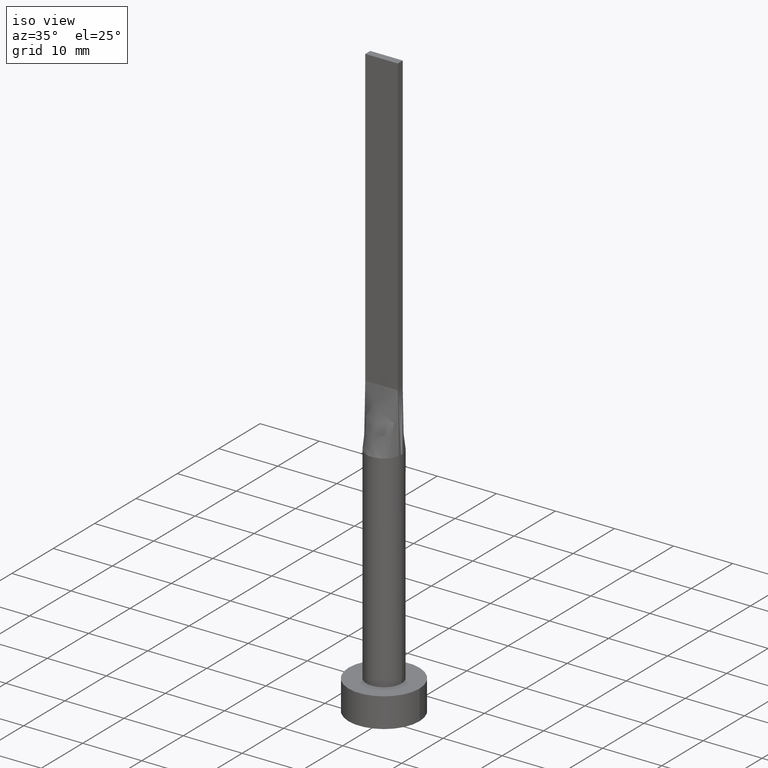
[diagram: clean part render]
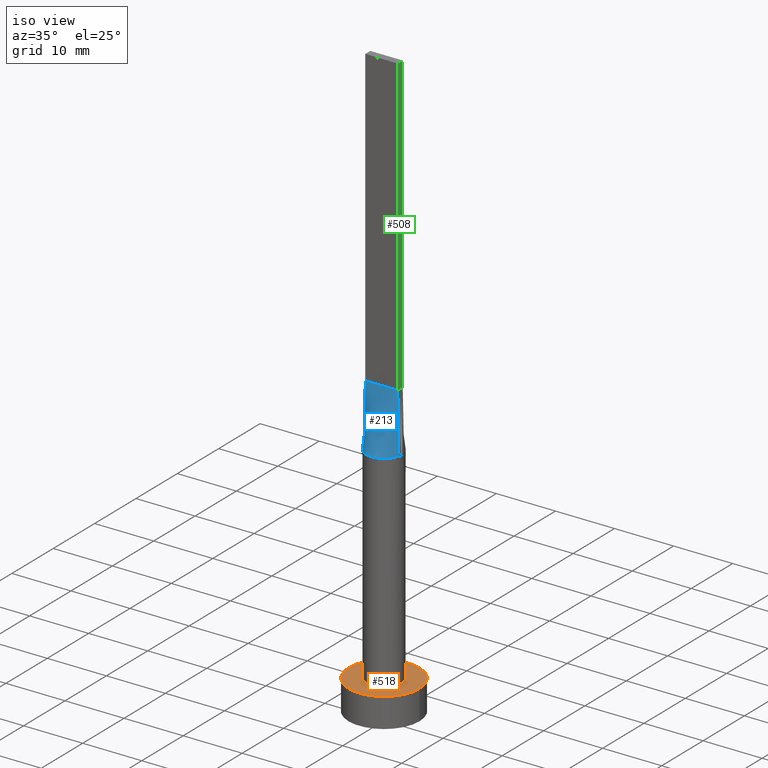
[diagram: same view with three faces highlighted in distinct colors, each labeled with its STEP entity id]
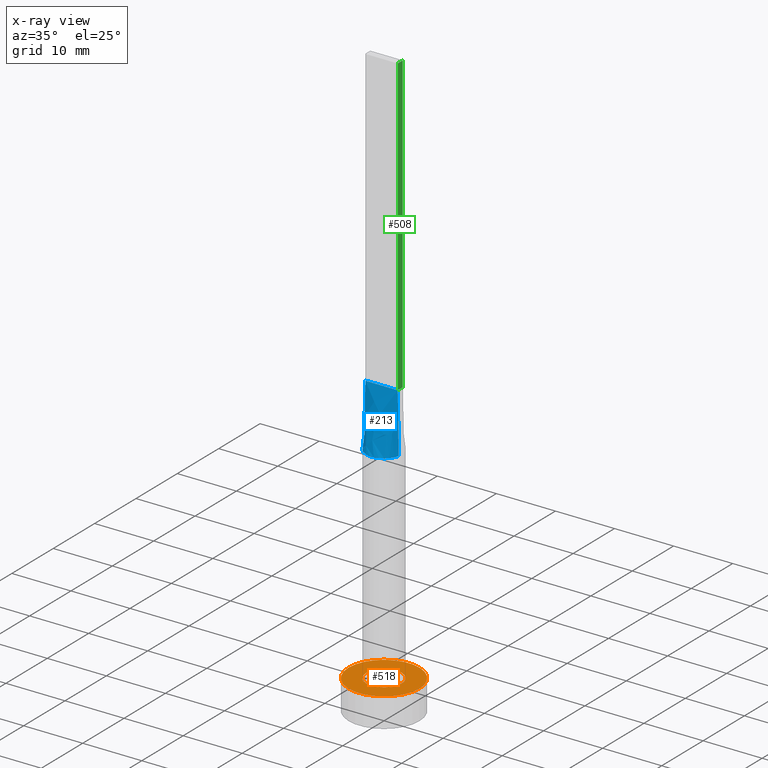
[diagram: x-ray of the same camera — body ghosted, the three highlighted faces saturated]
A machine part, iso view with three faces highlighted in distinct colors.
The next image is the same camera in x-ray (body ghosted, the three faces saturated) — at least one of them is partly hidden behind the body in this view.
Their STEP definitions:

[orange] entity #518 — the highlighted planar face has unit normal (0, 0, 1).
#17 = CARTESIAN_POINT ( 'NONE',  ( 0.000000000000000000, 0.000000000000000000, 5.000000000000000000 ) ) ;
#27 = CARTESIAN_POINT ( 'NONE',  ( 6.000000000000000888, 7.347880794884120722E-16, 5.000000000000000000 ) ) ;
#30 = DIRECTION ( 'NONE',  ( 1.000000000000000000, 0.000000000000000000, -0.000000000000000000 ) ) ;
#31 = CIRCLE ( 'NONE', #392, 6.000000000000000888 ) ;
#51 = ORIENTED_EDGE ( 'NONE', *, *, #326, .F. ) ;
#54 = DIRECTION ( 'NONE',  ( 1.000000000000000000, 0.000000000000000000, 0.000000000000000000 ) ) ;
#95 = DIRECTION ( 'NONE',  ( 0.000000000000000000, 0.000000000000000000, 1.000000000000000000 ) ) ;
#106 = CIRCLE ( 'NONE', #170, 3.000000000000000444 ) ;
#111 = CARTESIAN_POINT ( 'NONE',  ( 0.000000000000000000, 0.000000000000000000, 5.000000000000000000 ) ) ;
#124 = AXIS2_PLACEMENT_3D ( 'NONE', #111, #297, #30 ) ;
#149 = CARTESIAN_POINT ( 'NONE',  ( 0.000000000000000000, 0.000000000000000000, 5.000000000000000000 ) ) ;
#162 = PLANE ( 'NONE',  #124 ) ;
#166 = CARTESIAN_POINT ( 'NONE',  ( 0.000000000000000000, 0.000000000000000000, 5.000000000000000000 ) ) ;
#168 = VERTEX_POINT ( 'NONE', #27 ) ;
#170 = AXIS2_PLACEMENT_3D ( 'NONE', #149, #408, #542 ) ;
#192 = AXIS2_PLACEMENT_3D ( 'NONE', #166, #425, #201 ) ;
#201 = DIRECTION ( 'NONE',  ( 1.000000000000000000, 0.000000000000000000, 0.000000000000000000 ) ) ;
#223 = ORIENTED_EDGE ( 'NONE', *, *, #428, .F. ) ;
#244 = CARTESIAN_POINT ( 'NONE',  ( 0.000000000000000000, 0.000000000000000000, 5.000000000000000000 ) ) ;
#293 = FACE_BOUND ( 'NONE', #348, .T. ) ;
#297 = DIRECTION ( 'NONE',  ( 0.000000000000000000, 0.000000000000000000, 1.000000000000000000 ) ) ;
#300 = CARTESIAN_POINT ( 'NONE',  ( 3.000000000000000444, 3.673940397442060361E-16, 5.000000000000000000 ) ) ;
#324 = AXIS2_PLACEMENT_3D ( 'NONE', #244, #548, #454 ) ;
#326 = EDGE_CURVE ( 'NONE', #400, #578, #531, .T. ) ;
#332 = CARTESIAN_POINT ( 'NONE',  ( -6.000000000000000888, 0.000000000000000000, 5.000000000000000000 ) ) ;
#334 = VERTEX_POINT ( 'NONE', #332 ) ;
#348 = EDGE_LOOP ( 'NONE', ( #51, #223 ) ) ;
#355 = EDGE_CURVE ( 'NONE', #334, #168, #31, .T. ) ;
#392 = AXIS2_PLACEMENT_3D ( 'NONE', #17, #95, #54 ) ;
#400 = VERTEX_POINT ( 'NONE', #452 ) ;
#405 = EDGE_LOOP ( 'NONE', ( #570, #447 ) ) ;
#408 = DIRECTION ( 'NONE',  ( 0.000000000000000000, 0.000000000000000000, 1.000000000000000000 ) ) ;
#425 = DIRECTION ( 'NONE',  ( 0.000000000000000000, 0.000000000000000000, 1.000000000000000000 ) ) ;
#428 = EDGE_CURVE ( 'NONE', #578, #400, #106, .T. ) ;
#447 = ORIENTED_EDGE ( 'NONE', *, *, #502, .T. ) ;
#452 = CARTESIAN_POINT ( 'NONE',  ( -3.000000000000000444, 0.000000000000000000, 5.000000000000000000 ) ) ;
#454 = DIRECTION ( 'NONE',  ( 1.000000000000000000, 0.000000000000000000, 0.000000000000000000 ) ) ;
#469 = FACE_OUTER_BOUND ( 'NONE', #405, .T. ) ;
#477 = CIRCLE ( 'NONE', #192, 6.000000000000000888 ) ;
#502 = EDGE_CURVE ( 'NONE', #168, #334, #477, .T. ) ;
#518 = ADVANCED_FACE ( 'NONE', ( #293, #469 ), #162, .T. ) ;
#531 = CIRCLE ( 'NONE', #324, 3.000000000000000444 ) ;
#542 = DIRECTION ( 'NONE',  ( 1.000000000000000000, 0.000000000000000000, 0.000000000000000000 ) ) ;
#548 = DIRECTION ( 'NONE',  ( 0.000000000000000000, 0.000000000000000000, 1.000000000000000000 ) ) ;
#570 = ORIENTED_EDGE ( 'NONE', *, *, #355, .T. ) ;
#578 = VERTEX_POINT ( 'NONE', #300 ) ;

[blue] entity #213 — the highlighted face is a freeform B-spline surface patch.
#2 = LINE ( 'NONE', #391, #503 ) ;
#9 = CARTESIAN_POINT ( 'NONE',  ( -2.931315536094174057, -0.6395601373676296220, 40.00000000000000000 ) ) ;
#12 = CARTESIAN_POINT ( 'NONE',  ( 2.840523642114988867, -0.6197506128250874768, 45.00000000000000000 ) ) ;
#15 = LINE ( 'NONE', #12, #67 ) ;
#41 = VERTEX_POINT ( 'NONE', #9 ) ;
#45 = VERTEX_POINT ( 'NONE', #539 ) ;
#47 = CARTESIAN_POINT ( 'NONE',  ( -2.520833333333333037, -0.5999999999999994227, 50.00000000000000000 ) ) ;
#50 = CARTESIAN_POINT ( 'NONE',  ( -0.4583333333333328152, -0.5999999999999994227, 50.00000000000000000 ) ) ;
#59 = EDGE_CURVE ( 'NONE', #71, #181, #15, .T. ) ;
#67 = VECTOR ( 'NONE', #541, 1000.000000000000000 ) ;
#71 = VERTEX_POINT ( 'NONE', #347 ) ;
#81 = CARTESIAN_POINT ( 'NONE',  ( 2.291666666666666519, -0.5999999999999996447, 50.00000000000000000 ) ) ;
#86 = CARTESIAN_POINT ( 'NONE',  ( 2.792624347712116872, -1.135030881087315757, 40.00000000000001421 ) ) ;
#90 = CARTESIAN_POINT ( 'NONE',  ( 2.750000000000000000, -0.5999999999999997558, 50.00000000000000000 ) ) ;
#117 = DIRECTION ( 'NONE',  ( -0.01810162078030962129, -0.003949444533885649103, -0.9998283518749604415 ) ) ;
#127 = CARTESIAN_POINT ( 'NONE',  ( 0.4583333333333337034, -0.5999999999999995337, 50.00000000000000000 ) ) ;
#133 = CARTESIAN_POINT ( 'NONE',  ( 1.517787371616671876, -2.616501225271829156, 40.00000000000000711 ) ) ;
#136 = CARTESIAN_POINT ( 'NONE',  ( -2.931047284229977734, -0.6395012256501755310, 40.00000000000000000 ) ) ;
#151 = VECTOR ( 'NONE', #117, 1000.000000000000000 ) ;
#172 = CARTESIAN_POINT ( 'NONE',  ( -2.328745122427009928, -1.922758842442225058, 39.99999999999997868 ) ) ;
#173 = ORIENTED_EDGE ( 'NONE', *, *, #581, .T. ) ;
#181 = VERTEX_POINT ( 'NONE', #90 ) ;
#209 = CARTESIAN_POINT ( 'NONE',  ( 0.000000000000000000, 0.000000000000000000, 40.00000000000000000 ) ) ;
#213 = ADVANCED_FACE ( 'NONE', ( #318 ), #575, .T. ) ;
#215 = CARTESIAN_POINT ( 'NONE',  ( 2.518011668798964209, -1.657305971825550506, 40.00000000000001421 ) ) ;
#219 = DIRECTION ( 'NONE',  ( 1.000000000000000000, -5.913830031739115543E-17, 0.000000000000000000 ) ) ;
#226 = CARTESIAN_POINT ( 'NONE',  ( -1.145833333333332149, -0.5999999999999994227, 50.00000000000000000 ) ) ;
#229 = CARTESIAN_POINT ( 'NONE',  ( 2.931047284229977734, -0.6395012256501753090, 40.00000000000000000 ) ) ;
#230 = ORIENTED_EDGE ( 'NONE', *, *, #59, .T. ) ;
#236 = EDGE_CURVE ( 'NONE', #45, #181, #2, .T. ) ;
#261 = CARTESIAN_POINT ( 'NONE',  ( -1.517787371616672321, -2.616501225271827380, 39.99999999999998579 ) ) ;
#264 = CARTESIAN_POINT ( 'NONE',  ( 2.520833333333333037, -0.5999999999999996447, 50.00000000000000000 ) ) ;
#267 = CIRCLE ( 'NONE', #296, 3.000000000000000444 ) ;
#268 = CARTESIAN_POINT ( 'NONE',  ( 2.878980386154875060, -0.8781411751610634919, 40.00000000000000000 ) ) ;
#271 = CARTESIAN_POINT ( 'NONE',  ( -2.291666666666665630, -0.5999999999999994227, 50.00000000000000000 ) ) ;
#290 = LINE ( 'NONE', #431, #151 ) ;
#296 = AXIS2_PLACEMENT_3D ( 'NONE', #209, #510, #338 ) ;
#308 = CARTESIAN_POINT ( 'NONE',  ( 1.604166666666666741, -0.5999999999999996447, 50.00000000000000000 ) ) ;
#310 = CARTESIAN_POINT ( 'NONE',  ( -0.8041209001220698260, -2.916015559847872307, 40.00000000000000000 ) ) ;
#318 = FACE_OUTER_BOUND ( 'NONE', #444, .T. ) ;
#338 = DIRECTION ( 'NONE',  ( 1.000000000000000000, 0.000000000000000000, 0.000000000000000000 ) ) ;
#347 = CARTESIAN_POINT ( 'NONE',  ( 2.931332910560268790, -0.6395638358681950963, 40.00000000000000000 ) ) ;
#353 = CARTESIAN_POINT ( 'NONE',  ( 1.145833333333333481, -0.5999999999999996447, 50.00000000000000000 ) ) ;
#356 = CARTESIAN_POINT ( 'NONE',  ( -2.792624347712116428, -1.135030881087314647, 40.00000000000000711 ) ) ;
#359 = CARTESIAN_POINT ( 'NONE',  ( 0.4026715616377293805, -3.000000000000001332, 40.00000000000000000 ) ) ;
#365 = CARTESIAN_POINT ( 'NONE',  ( -2.518011668798964653, -1.657305971825550062, 40.00000000000001421 ) ) ;
#391 = CARTESIAN_POINT ( 'NONE',  ( -2.750000000000000000, -0.5999999999999994227, 50.00000000000000000 ) ) ;
#399 = CARTESIAN_POINT ( 'NONE',  ( -0.2291666666666664076, -0.5999999999999995337, 50.00000000000000000 ) ) ;
#404 = CARTESIAN_POINT ( 'NONE',  ( -0.4026715616377306572, -3.000000000000000000, 40.00000000000000000 ) ) ;
#406 = CARTESIAN_POINT ( 'NONE',  ( -2.878980386154874616, -0.8781411751610622707, 39.99999999999999289 ) ) ;
#431 = CARTESIAN_POINT ( 'NONE',  ( -2.840523642114988867, -0.6197506128250873658, 45.00000000000000000 ) ) ;
#437 = CARTESIAN_POINT ( 'NONE',  ( -2.750000000000000000, -0.5999999999999994227, 50.00000000000000000 ) ) ;
#439 = CARTESIAN_POINT ( 'NONE',  ( 2.750000000000000000, -0.5999999999999997558, 50.00000000000000000 ) ) ;
#444 = EDGE_LOOP ( 'NONE', ( #173, #230, #489, #561 ) ) ;
#446 = CARTESIAN_POINT ( 'NONE',  ( -1.604166666666665408, -0.5999999999999994227, 50.00000000000000000 ) ) ;
#449 = CARTESIAN_POINT ( 'NONE',  ( -1.833333333333332149, -0.5999999999999994227, 50.00000000000000000 ) ) ;
#476 = EDGE_CURVE ( 'NONE', #45, #41, #290, .T. ) ;
#481 = CARTESIAN_POINT ( 'NONE',  ( 0.2291666666666668517, -0.5999999999999995337, 50.00000000000000000 ) ) ;
#484 = CARTESIAN_POINT ( 'NONE',  ( 1.829136458871248205, -2.402980488111650992, 40.00000000000000711 ) ) ;
#489 = ORIENTED_EDGE ( 'NONE', *, *, #236, .F. ) ;
#503 = VECTOR ( 'NONE', #219, 1000.000000000000000 ) ;
#510 = DIRECTION ( 'NONE',  ( 0.000000000000000000, 0.000000000000000000, 1.000000000000000000 ) ) ;
#522 = CARTESIAN_POINT ( 'NONE',  ( 0.9166666666666669627, -0.5999999999999996447, 50.00000000000000000 ) ) ;
#526 = CARTESIAN_POINT ( 'NONE',  ( -0.9166666666666656305, -0.5999999999999994227, 50.00000000000000000 ) ) ;
#529 = CARTESIAN_POINT ( 'NONE',  ( 0.8041209001220684938, -2.916015559847872751, 40.00000000000000000 ) ) ;
#535 = CARTESIAN_POINT ( 'NONE',  ( 2.328745122427008152, -1.922758842442226390, 39.99999999999999289 ) ) ;
#539 = CARTESIAN_POINT ( 'NONE',  ( -2.750000000000000000, -0.5999999999999994227, 50.00000000000000000 ) ) ;
#541 = DIRECTION ( 'NONE',  ( -0.01810162078030962129, 0.003949444533885595326, 0.9998283518749604415 ) ) ;
#561 = ORIENTED_EDGE ( 'NONE', *, *, #476, .T. ) ;
#567 = CARTESIAN_POINT ( 'NONE',  ( -1.829136458871248427, -2.402980488111649660, 39.99999999999997158 ) ) ;
#572 = CARTESIAN_POINT ( 'NONE',  ( 1.833333333333333481, -0.5999999999999996447, 50.00000000000000000 ) ) ;
#575 = B_SPLINE_SURFACE_WITH_KNOTS ( 'NONE', 3, 1, ( 
 ( #136, #437 ),
 ( #406, #47 ),
 ( #356, #271 ),
 ( #365, #449 ),
 ( #172, #446 ),
 ( #567, #226 ),
 ( #261, #526 ),
 ( #310, #50 ),
 ( #404, #399 ),
 ( #359, #481 ),
 ( #529, #127 ),
 ( #133, #522 ),
 ( #484, #353 ),
 ( #535, #308 ),
 ( #215, #572 ),
 ( #86, #81 ),
 ( #268, #264 ),
 ( #229, #439 ) ),
 .UNSPECIFIED., .F., .F., .F.,
 ( 4, 2, 2, 2, 2, 2, 2, 2, 4 ),
 ( 2, 2 ),
 ( 0.000000000000000000, 0.1250000000000000833, 0.2500000000000001665, 0.3750000000000001110, 0.5000000000000001110, 0.6250000000000001110, 0.7500000000000000000, 0.8750000000000000000, 1.000000000000000000 ),
 ( 0.000000000000000000, 1.000000000000000000 ),
 .UNSPECIFIED. ) ;
#581 = EDGE_CURVE ( 'NONE', #41, #71, #267, .T. ) ;

[green] entity #508 — the highlighted planar face has unit normal (-1, 0, 0).
#8 = CARTESIAN_POINT ( 'NONE',  ( 2.750000000000000000, 0.6000000000000001998, 50.00000000000000000 ) ) ;
#26 = CARTESIAN_POINT ( 'NONE',  ( 2.750000000000000000, -0.5999999999999997558, 100.0000000000000000 ) ) ;
#33 = PLANE ( 'NONE',  #228 ) ;
#82 = EDGE_CURVE ( 'NONE', #181, #409, #516, .T. ) ;
#90 = CARTESIAN_POINT ( 'NONE',  ( 2.750000000000000000, -0.5999999999999997558, 50.00000000000000000 ) ) ;
#97 = ORIENTED_EDGE ( 'NONE', *, *, #143, .F. ) ;
#98 = CARTESIAN_POINT ( 'NONE',  ( 2.750000000000000000, 0.6000000000000001998, 100.0000000000000000 ) ) ;
#99 = ORIENTED_EDGE ( 'NONE', *, *, #161, .F. ) ;
#112 = DIRECTION ( 'NONE',  ( 0.000000000000000000, 1.000000000000000000, 0.000000000000000000 ) ) ;
#143 = EDGE_CURVE ( 'NONE', #530, #323, #520, .T. ) ;
#158 = VECTOR ( 'NONE', #112, 1000.000000000000000 ) ;
#161 = EDGE_CURVE ( 'NONE', #323, #409, #295, .T. ) ;
#181 = VERTEX_POINT ( 'NONE', #90 ) ;
#211 = DIRECTION ( 'NONE',  ( -1.000000000000000000, 0.000000000000000000, 0.000000000000000000 ) ) ;
#228 = AXIS2_PLACEMENT_3D ( 'NONE', #26, #211, #429 ) ;
#242 = DIRECTION ( 'NONE',  ( -0.000000000000000000, -0.000000000000000000, -1.000000000000000000 ) ) ;
#251 = DIRECTION ( 'NONE',  ( -0.000000000000000000, -0.000000000000000000, -1.000000000000000000 ) ) ;
#254 = CARTESIAN_POINT ( 'NONE',  ( 2.750000000000000000, -0.5999999999999997558, 100.0000000000000000 ) ) ;
#255 = ORIENTED_EDGE ( 'NONE', *, *, #82, .T. ) ;
#257 = DIRECTION ( 'NONE',  ( -0.000000000000000000, 1.000000000000000000, -0.000000000000000000 ) ) ;
#295 = LINE ( 'NONE', #468, #441 ) ;
#319 = EDGE_CURVE ( 'NONE', #530, #181, #420, .T. ) ;
#323 = VERTEX_POINT ( 'NONE', #98 ) ;
#333 = VECTOR ( 'NONE', #257, 1000.000000000000000 ) ;
#379 = CARTESIAN_POINT ( 'NONE',  ( 2.750000000000000000, -0.5999999999999997558, 100.0000000000000000 ) ) ;
#409 = VERTEX_POINT ( 'NONE', #8 ) ;
#420 = LINE ( 'NONE', #495, #459 ) ;
#429 = DIRECTION ( 'NONE',  ( 0.000000000000000000, 0.000000000000000000, 1.000000000000000000 ) ) ;
#440 = ORIENTED_EDGE ( 'NONE', *, *, #319, .T. ) ;
#441 = VECTOR ( 'NONE', #251, 1000.000000000000000 ) ;
#459 = VECTOR ( 'NONE', #242, 1000.000000000000000 ) ;
#468 = CARTESIAN_POINT ( 'NONE',  ( 2.750000000000000000, 0.6000000000000001998, 100.0000000000000000 ) ) ;
#495 = CARTESIAN_POINT ( 'NONE',  ( 2.750000000000000000, -0.5999999999999997558, 100.0000000000000000 ) ) ;
#508 = ADVANCED_FACE ( 'NONE', ( #562 ), #33, .F. ) ;
#514 = EDGE_LOOP ( 'NONE', ( #255, #99, #97, #440 ) ) ;
#516 = LINE ( 'NONE', #559, #333 ) ;
#520 = LINE ( 'NONE', #254, #158 ) ;
#530 = VERTEX_POINT ( 'NONE', #379 ) ;
#559 = CARTESIAN_POINT ( 'NONE',  ( 2.750000000000000000, 0.6000000000000001998, 50.00000000000000000 ) ) ;
#562 = FACE_OUTER_BOUND ( 'NONE', #514, .T. ) ;